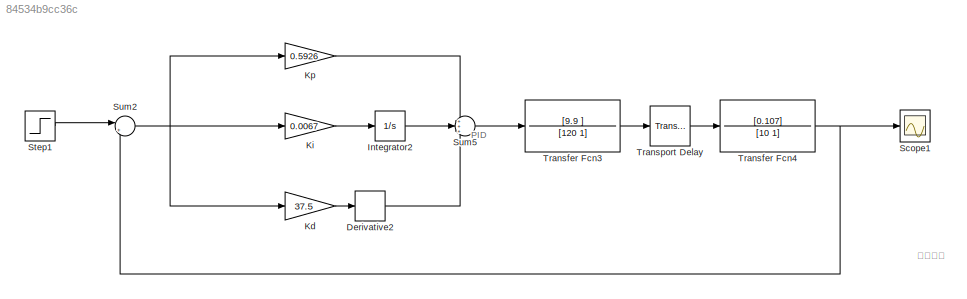
MODEL slx_84534b9cc36c
KIND model
CONFIG AbsTol = auto
CONFIG EnableMultiTasking = on
CONFIG FixedStep = auto
CONFIG MaxStep = 1000
CONFIG MinStep = auto
CONFIG PostLoadFcn = cd(fileparts(which(bdroot)))
CONFIG RelTol = 1e-6
CONFIG SampleTimeConstraint = Unconstrained
CONFIG Solver = ode15s
CONFIG SolverName = ode15s
CONFIG StartTime = 0.0
CONFIG StopTime = 1500
BLOCK [Derivative] Derivative2
BLOCK [Integrator] Integrator2
  Ports = [1, 1]
BLOCK [Gain] Kd
  Gain = 37.5
  OutDataTypeStr = Inherit: Inherit via internal rule
  ParamDataTypeStr = Inherit: Inherit via internal rule
  SaturateOnIntegerOverflow = off
BLOCK [Gain] Ki
  Gain = 0.0067
  OutDataTypeStr = Inherit: Inherit via internal rule
  ParamDataTypeStr = Inherit: Inherit via internal rule
  SaturateOnIntegerOverflow = off
BLOCK [Gain] Kp
  Gain = 0.5926
  OutDataTypeStr = Inherit: Inherit via internal rule
  ParamDataTypeStr = Inherit: Inherit via internal rule
  SaturateOnIntegerOverflow = off
BLOCK [Scope] Scope1
  Floating = off
  NumInputPorts = 1
  Ports = [1]
  ScopeSpecificationString = Simulink.scopes.TimeScopeBlockCfg('CurrentConfiguration', extmgr.ConfigurationSet(extmgr.Configuration('Core','General UI',true),extmgr.Configuration('Core','Source UI',true),extmgr.Configuration('Sources','WiredSimulink',true,'DataLoggingVariableName','ScopeData1'),extmgr.Configuration('Visuals','Time Domain',true,'SerializedDisplays',{struct('MinYLimReal','-14.62288','MaxYLimReal','131.60595','Y...<+1426ch>
BLOCK [Step] Step1
  After = 100
  SampleTime = 0
  Time = 0
BLOCK [Sum] Sum2
  IconShape = round
  InputSameDT = off
  Inputs = |+-
  OutDataTypeStr = Inherit: Inherit via internal rule
  Ports = [2, 1]
BLOCK [Sum] Sum5
  IconShape = round
  InputSameDT = off
  Inputs = +++
  OutDataTypeStr = Inherit: Inherit via internal rule
  Ports = [3, 1]
  SaturateOnIntegerOverflow = off
BLOCK [TransferFcn] Transfer Fcn3
  Denominator = [120 1]
  Numerator = [9.9 ]
BLOCK [TransferFcn] Transfer Fcn4
  Denominator = [10 1]
  Numerator = [0.107]
BLOCK [TransportDelay] Transport Delay
  DelayTime = 80
  Ports = [1, 1]
ANNOTATION (root): PID
ANNOTATION (root): 一休科技
LINE Derivative2:1 -> Sum5:3
LINE Integrator2:1 -> Sum5:2
LINE Kd:1 -> Derivative2:1
LINE Ki:1 -> Integrator2:1
LINE Kp:1 -> Sum5:1
LINE Step1:1 -> Sum2:1
NET Sum2:1 -> Kd:1, Ki:1, Kp:1
LINE Sum5:1 -> Transfer Fcn3:1
LINE Transfer Fcn3:1 -> Transport Delay:1
NET Transfer Fcn4:1 -> Scope1:1, Sum2:2
LINE Transport Delay:1 -> Transfer Fcn4:1
note: NET lines group one-source signal fan-out (src -> all destinations, sorted); 1:1 wires keep LINE
